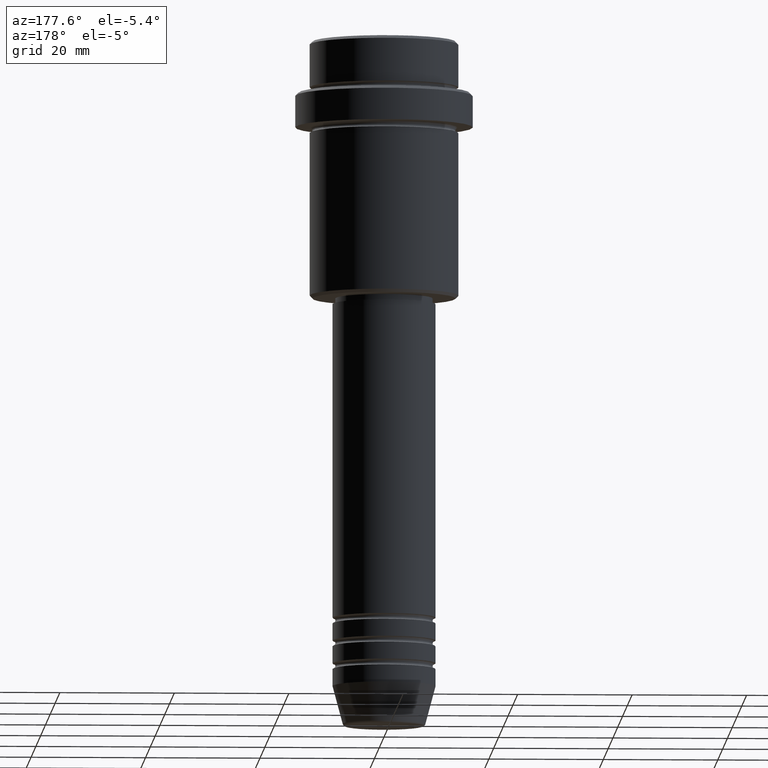
[diagram: clean part render]
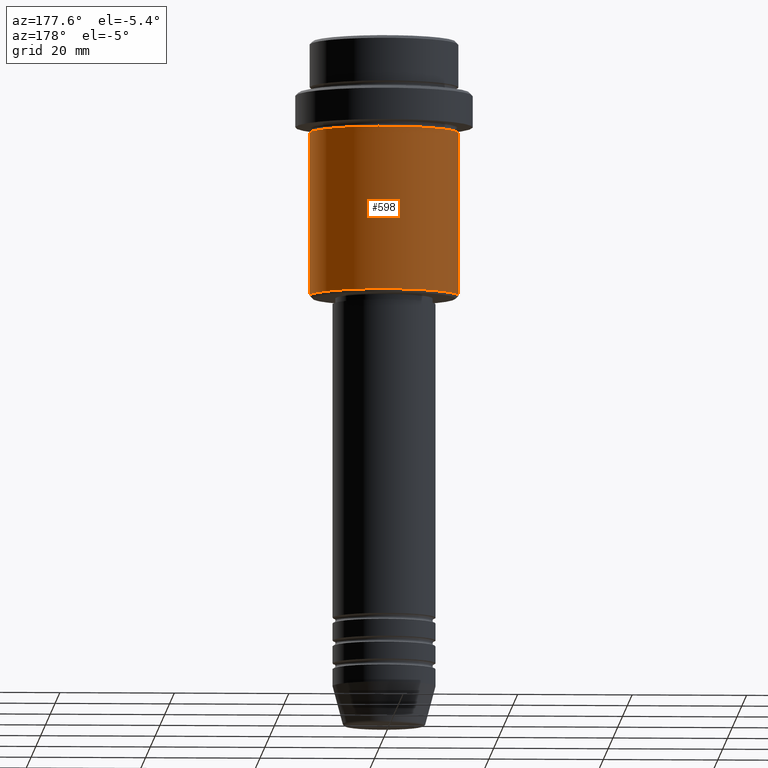
[diagram: same view with one face highlighted and labeled with its STEP entity id]
A machine part, auxiliary view. The second image highlights one B-rep face of the part: STEP entity #598.
In plain terms, the highlighted cylindrical surface (partial cylindrical patch) has radius 13 mm, axis along (-0, -0, 1).
Its self-contained STEP definition (entity closure, byte-faithful):
#6 = EDGE_LOOP ( 'NONE', ( #149, #1177, #273, #942 ) ) ;
#36 = CARTESIAN_POINT ( 'NONE',  ( 13.00000000000000000, 0.000000000000000000, -16.00000000000000000 ) ) ;
#50 = CARTESIAN_POINT ( 'NONE',  ( -13.00000000000000000, 1.592040838891559095E-15, -16.00000000000000000 ) ) ;
#51 = LINE ( 'NONE', #385, #844 ) ;
#52 = DIRECTION ( 'NONE',  ( -1.000000000000000000, 0.000000000000000000, 0.000000000000000000 ) ) ;
#62 = CIRCLE ( 'NONE', #835, 13.00000000000000000 ) ;
#129 = DIRECTION ( 'NONE',  ( -0.000000000000000000, -0.000000000000000000, 1.000000000000000000 ) ) ;
#131 = CIRCLE ( 'NONE', #1276, 13.00000000000000000 ) ;
#149 = ORIENTED_EDGE ( 'NONE', *, *, #394, .T. ) ;
#157 = DIRECTION ( 'NONE',  ( -0.000000000000000000, -0.000000000000000000, 1.000000000000000000 ) ) ;
#269 = CARTESIAN_POINT ( 'NONE',  ( 0.000000000000000000, 0.000000000000000000, -16.00000000000000000 ) ) ;
#273 = ORIENTED_EDGE ( 'NONE', *, *, #439, .F. ) ;
#339 = VERTEX_POINT ( 'NONE', #36 ) ;
#376 = DIRECTION ( 'NONE',  ( 1.000000000000000000, 0.000000000000000000, 0.000000000000000000 ) ) ;
#385 = CARTESIAN_POINT ( 'NONE',  ( -13.00000000000000000, 1.592040838891559095E-15, 0.000000000000000000 ) ) ;
#394 = EDGE_CURVE ( 'NONE', #1108, #1412, #131, .T. ) ;
#439 = EDGE_CURVE ( 'NONE', #339, #837, #62, .T. ) ;
#461 = CARTESIAN_POINT ( 'NONE',  ( 13.00000000000000000, 0.000000000000000000, -44.50000000000000000 ) ) ;
#489 = DIRECTION ( 'NONE',  ( -0.000000000000000000, -0.000000000000000000, 1.000000000000000000 ) ) ;
#554 = FACE_OUTER_BOUND ( 'NONE', #6, .T. ) ;
#598 = ADVANCED_FACE ( 'NONE', ( #554 ), #1223, .T. ) ;
#681 = CARTESIAN_POINT ( 'NONE',  ( 0.000000000000000000, 0.000000000000000000, 0.000000000000000000 ) ) ;
#755 = LINE ( 'NONE', #777, #1255 ) ;
#777 = CARTESIAN_POINT ( 'NONE',  ( 13.00000000000000000, 0.000000000000000000, 0.000000000000000000 ) ) ;
#835 = AXIS2_PLACEMENT_3D ( 'NONE', #269, #1270, #376 ) ;
#837 = VERTEX_POINT ( 'NONE', #50 ) ;
#838 = AXIS2_PLACEMENT_3D ( 'NONE', #681, #129, #1103 ) ;
#844 = VECTOR ( 'NONE', #157, 1000.000000000000000 ) ;
#942 = ORIENTED_EDGE ( 'NONE', *, *, #1063, .F. ) ;
#1063 = EDGE_CURVE ( 'NONE', #1108, #339, #755, .T. ) ;
#1103 = DIRECTION ( 'NONE',  ( 1.000000000000000000, 0.000000000000000000, 0.000000000000000000 ) ) ;
#1108 = VERTEX_POINT ( 'NONE', #461 ) ;
#1177 = ORIENTED_EDGE ( 'NONE', *, *, #1251, .T. ) ;
#1199 = CARTESIAN_POINT ( 'NONE',  ( -13.00000000000000000, 1.592040838891559095E-15, -44.50000000000000000 ) ) ;
#1223 = CYLINDRICAL_SURFACE ( 'NONE', #838, 13.00000000000000000 ) ;
#1251 = EDGE_CURVE ( 'NONE', #1412, #837, #51, .T. ) ;
#1254 = CARTESIAN_POINT ( 'NONE',  ( 0.000000000000000000, 0.000000000000000000, -44.50000000000000000 ) ) ;
#1255 = VECTOR ( 'NONE', #1415, 1000.000000000000000 ) ;
#1270 = DIRECTION ( 'NONE',  ( -0.000000000000000000, -0.000000000000000000, 1.000000000000000000 ) ) ;
#1276 = AXIS2_PLACEMENT_3D ( 'NONE', #1254, #489, #52 ) ;
#1412 = VERTEX_POINT ( 'NONE', #1199 ) ;
#1415 = DIRECTION ( 'NONE',  ( -0.000000000000000000, -0.000000000000000000, 1.000000000000000000 ) ) ;